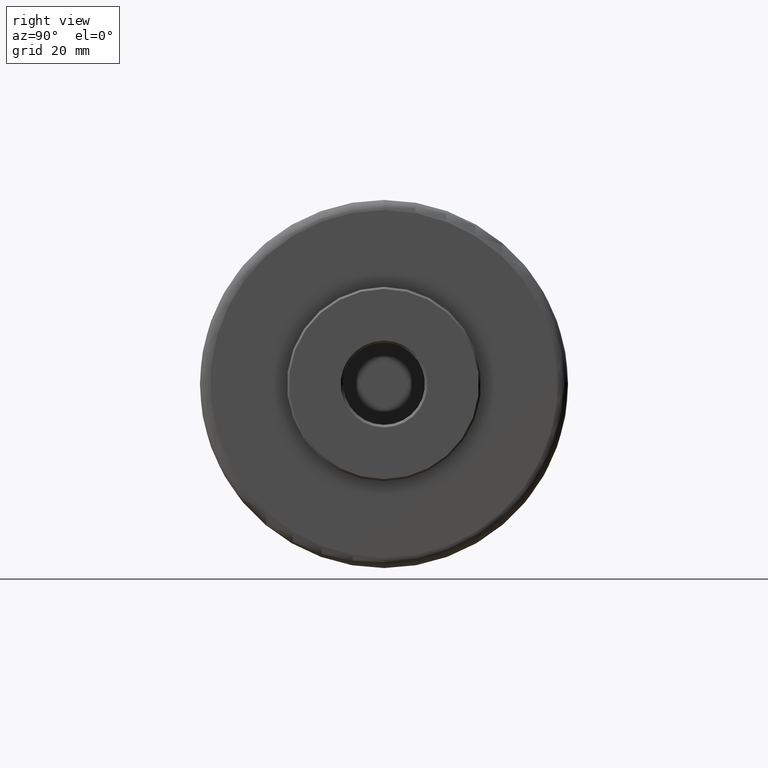
[diagram: clean part render]
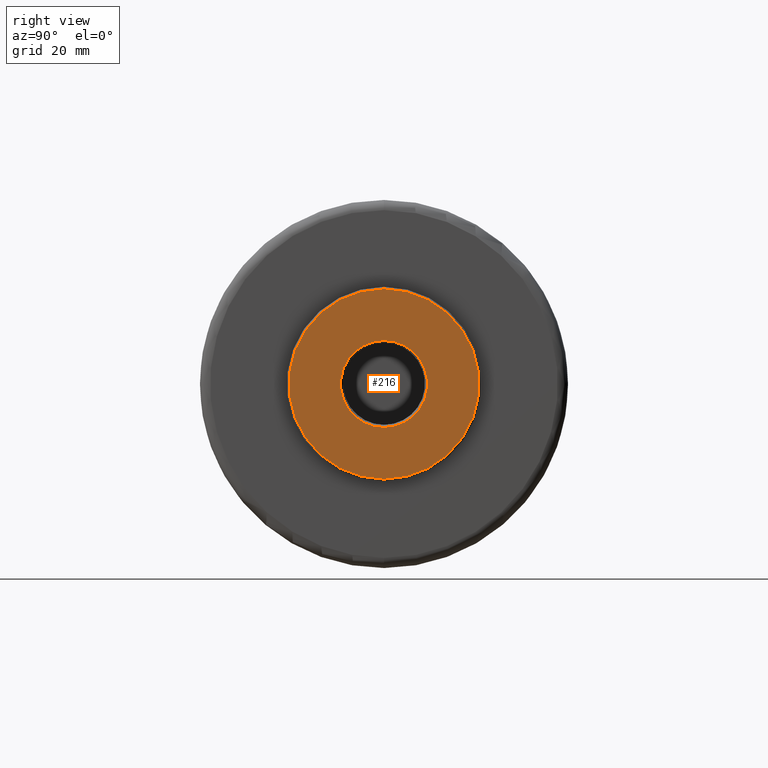
[diagram: same view with one face highlighted and labeled with its STEP entity id]
A machine part, right view. The second image highlights one B-rep face of the part: STEP entity #216.
In plain terms, the highlighted planar face has unit normal (1, -0, 0).
Its self-contained STEP definition (entity closure, byte-faithful):
#26 = VERTEX_POINT ( 'NONE', #815 ) ;
#31 = FACE_OUTER_BOUND ( 'NONE', #1089, .T. ) ;
#35 = DIRECTION ( 'NONE',  ( -1.000000000000000000, 0.0000000000000000000, -0.0000000000000000000 ) ) ;
#39 = EDGE_CURVE ( 'NONE', #26, #160, #80, .T. ) ;
#71 = EDGE_CURVE ( 'NONE', #987, #1216, #897, .T. ) ;
#80 = CIRCLE ( 'NONE', #348, 8.499999999999980500 ) ;
#89 = CARTESIAN_POINT ( 'NONE',  ( 100.5000000000000000, 1.040949779275247800E-015, 8.499999999999980500 ) ) ;
#160 = VERTEX_POINT ( 'NONE', #89 ) ;
#193 = CIRCLE ( 'NONE', #758, 8.499999999999980500 ) ;
#196 = PLANE ( 'NONE',  #1180 ) ;
#216 = ADVANCED_FACE ( 'NONE', ( #1135, #31 ), #196, .T. ) ;
#307 = AXIS2_PLACEMENT_3D ( 'NONE', #977, #366, #373 ) ;
#311 = CARTESIAN_POINT ( 'NONE',  ( 100.5000000000000000, 0.0000000000000000000, 0.0000000000000000000 ) ) ;
#325 = ORIENTED_EDGE ( 'NONE', *, *, #71, .F. ) ;
#327 = CARTESIAN_POINT ( 'NONE',  ( 100.5000000000000300, 0.0000000000000000000, 18.59999999999997300 ) ) ;
#348 = AXIS2_PLACEMENT_3D ( 'NONE', #892, #35, #1369 ) ;
#366 = DIRECTION ( 'NONE',  ( -1.000000000000000000, 0.0000000000000000000, 0.0000000000000000000 ) ) ;
#372 = CARTESIAN_POINT ( 'NONE',  ( 100.5000000000000300, 2.302335982397022300E-015, -18.59999999999997300 ) ) ;
#373 = DIRECTION ( 'NONE',  ( 0.0000000000000000000, 0.0000000000000000000, 1.000000000000000000 ) ) ;
#388 = EDGE_CURVE ( 'NONE', #160, #26, #193, .T. ) ;
#434 = CARTESIAN_POINT ( 'NONE',  ( 100.5000000000000300, 0.0000000000000000000, 0.0000000000000000000 ) ) ;
#513 = EDGE_LOOP ( 'NONE', ( #1362, #1314 ) ) ;
#550 = DIRECTION ( 'NONE',  ( 0.0000000000000000000, 0.0000000000000000000, 1.000000000000000000 ) ) ;
#665 = ORIENTED_EDGE ( 'NONE', *, *, #1010, .F. ) ;
#758 = AXIS2_PLACEMENT_3D ( 'NONE', #311, #1022, #846 ) ;
#815 = CARTESIAN_POINT ( 'NONE',  ( 100.5000000000000000, 0.0000000000000000000, -8.499999999999980500 ) ) ;
#846 = DIRECTION ( 'NONE',  ( 0.0000000000000000000, 0.0000000000000000000, -1.000000000000000000 ) ) ;
#892 = CARTESIAN_POINT ( 'NONE',  ( 100.5000000000000000, 0.0000000000000000000, 0.0000000000000000000 ) ) ;
#897 = CIRCLE ( 'NONE', #307, 18.59999999999997300 ) ;
#977 = CARTESIAN_POINT ( 'NONE',  ( 100.5000000000000300, 0.0000000000000000000, 0.0000000000000000000 ) ) ;
#987 = VERTEX_POINT ( 'NONE', #327 ) ;
#1010 = EDGE_CURVE ( 'NONE', #1216, #987, #1225, .T. ) ;
#1019 = DIRECTION ( 'NONE',  ( 1.000000000000000000, -0.0000000000000000000, 0.0000000000000000000 ) ) ;
#1022 = DIRECTION ( 'NONE',  ( -1.000000000000000000, 0.0000000000000000000, -0.0000000000000000000 ) ) ;
#1089 = EDGE_LOOP ( 'NONE', ( #325, #665 ) ) ;
#1135 = FACE_BOUND ( 'NONE', #513, .T. ) ;
#1170 = DIRECTION ( 'NONE',  ( -1.000000000000000000, 0.0000000000000000000, 0.0000000000000000000 ) ) ;
#1180 = AXIS2_PLACEMENT_3D ( 'NONE', #1252, #1019, #1327 ) ;
#1216 = VERTEX_POINT ( 'NONE', #372 ) ;
#1220 = AXIS2_PLACEMENT_3D ( 'NONE', #434, #1170, #550 ) ;
#1225 = CIRCLE ( 'NONE', #1220, 18.59999999999997300 ) ;
#1252 = CARTESIAN_POINT ( 'NONE',  ( 100.5000000000000000, -18.82320000000000300, 18.82320000000000300 ) ) ;
#1314 = ORIENTED_EDGE ( 'NONE', *, *, #388, .T. ) ;
#1327 = DIRECTION ( 'NONE',  ( 0.0000000000000000000, 0.0000000000000000000, -1.000000000000000000 ) ) ;
#1362 = ORIENTED_EDGE ( 'NONE', *, *, #39, .T. ) ;
#1369 = DIRECTION ( 'NONE',  ( 0.0000000000000000000, 0.0000000000000000000, -1.000000000000000000 ) ) ;